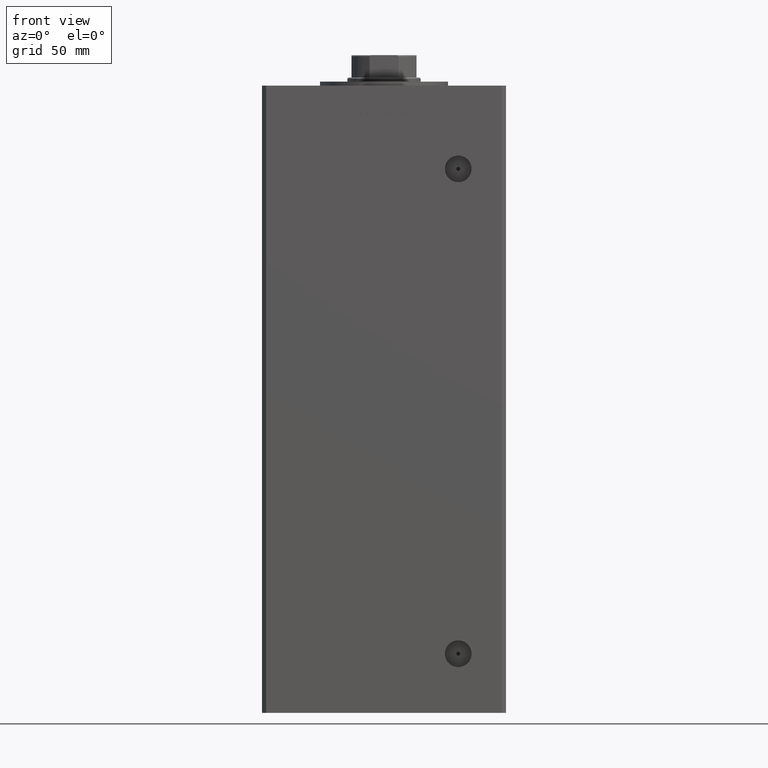
[diagram: clean part render]
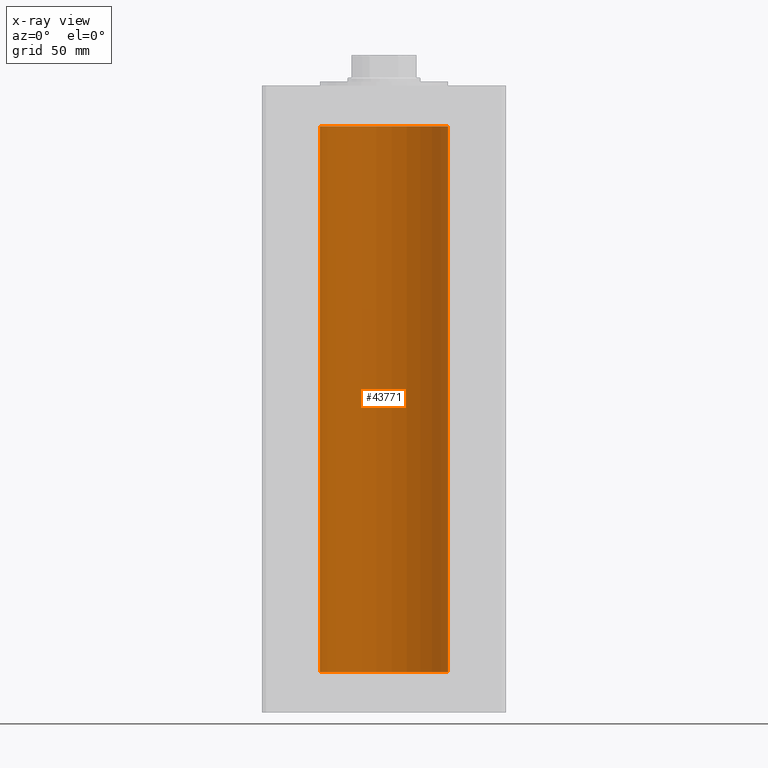
[diagram: x-ray — body ghosted, one internal face saturated and labeled with its STEP entity id]
A machine part, front view, then the same camera in x-ray: the body is ghosted and one INTERNAL B-rep face — a face not visible from any outside direction — is saturated and labeled: STEP entity #43771.
In plain terms, the highlighted cylindrical surface (partial cylindrical patch) has radius 31.5 mm, axis along (-0, -0, -1).
Its self-contained STEP definition (entity closure, byte-faithful):
#891 = VECTOR ( 'NONE', #38145, 1000.000000000000000 ) ;
#3439 = DIRECTION ( 'NONE',  ( 1.000000000000000000, 0.000000000000000000, 0.000000000000000000 ) ) ;
#4929 = DIRECTION ( 'NONE',  ( -1.000000000000000000, 0.000000000000000000, 0.000000000000000000 ) ) ;
#6442 = DIRECTION ( 'NONE',  ( 1.000000000000000000, 0.000000000000000000, 0.000000000000000000 ) ) ;
#10364 = ORIENTED_EDGE ( 'NONE', *, *, #46721, .T. ) ;
#11257 = VERTEX_POINT ( 'NONE', #43966 ) ;
#11458 = CARTESIAN_POINT ( 'NONE',  ( 31.50000000000000000, 3.857637417314162689E-15, 0.000000000000000000 ) ) ;
#12105 = CIRCLE ( 'NONE', #41566, 31.50000000000000000 ) ;
#12851 = VERTEX_POINT ( 'NONE', #17449 ) ;
#13350 = DIRECTION ( 'NONE',  ( -0.000000000000000000, -0.000000000000000000, -1.000000000000000000 ) ) ;
#13590 = CARTESIAN_POINT ( 'NONE',  ( 0.000000000000000000, 0.000000000000000000, 0.000000000000000000 ) ) ;
#14363 = EDGE_CURVE ( 'NONE', #16198, #11257, #12105, .T. ) ;
#15256 = CARTESIAN_POINT ( 'NONE',  ( -31.50000000000000000, 0.000000000000000000, 268.5000000000000000 ) ) ;
#16198 = VERTEX_POINT ( 'NONE', #11458 ) ;
#17449 = CARTESIAN_POINT ( 'NONE',  ( 31.50000000000000000, 3.857637417314162689E-15, 268.5000000000000000 ) ) ;
#20500 = CARTESIAN_POINT ( 'NONE',  ( 0.000000000000000000, 0.000000000000000000, 268.5000000000000000 ) ) ;
#22616 = CIRCLE ( 'NONE', #38595, 31.50000000000000000 ) ;
#23203 = CARTESIAN_POINT ( 'NONE',  ( 0.000000000000000000, 0.000000000000000000, 268.5000000000000000 ) ) ;
#27141 = AXIS2_PLACEMENT_3D ( 'NONE', #20500, #13350, #4929 ) ;
#28910 = EDGE_CURVE ( 'NONE', #37352, #11257, #41615, .T. ) ;
#34715 = LINE ( 'NONE', #37890, #891 ) ;
#35958 = ORIENTED_EDGE ( 'NONE', *, *, #28910, .T. ) ;
#37352 = VERTEX_POINT ( 'NONE', #15256 ) ;
#37531 = EDGE_CURVE ( 'NONE', #12851, #16198, #34715, .T. ) ;
#37576 = DIRECTION ( 'NONE',  ( -0.000000000000000000, 0.000000000000000000, 1.000000000000000000 ) ) ;
#37821 = EDGE_LOOP ( 'NONE', ( #47078, #10364, #35958, #41163 ) ) ;
#37890 = CARTESIAN_POINT ( 'NONE',  ( 31.50000000000000000, 3.857637417314162689E-15, 268.5000000000000000 ) ) ;
#38145 = DIRECTION ( 'NONE',  ( -0.000000000000000000, -0.000000000000000000, -1.000000000000000000 ) ) ;
#38595 = AXIS2_PLACEMENT_3D ( 'NONE', #23203, #39261, #3439 ) ;
#39261 = DIRECTION ( 'NONE',  ( -0.000000000000000000, 0.000000000000000000, 1.000000000000000000 ) ) ;
#40773 = CYLINDRICAL_SURFACE ( 'NONE', #27141, 31.50000000000000000 ) ;
#41097 = CARTESIAN_POINT ( 'NONE',  ( -31.50000000000000000, 0.000000000000000000, 268.5000000000000000 ) ) ;
#41163 = ORIENTED_EDGE ( 'NONE', *, *, #14363, .F. ) ;
#41566 = AXIS2_PLACEMENT_3D ( 'NONE', #13590, #37576, #6442 ) ;
#41615 = LINE ( 'NONE', #41097, #47752 ) ;
#43771 = ADVANCED_FACE ( 'NONE', ( #48427 ), #40773, .F. ) ;
#43966 = CARTESIAN_POINT ( 'NONE',  ( -31.50000000000000000, 0.000000000000000000, 0.000000000000000000 ) ) ;
#46085 = DIRECTION ( 'NONE',  ( -0.000000000000000000, -0.000000000000000000, -1.000000000000000000 ) ) ;
#46721 = EDGE_CURVE ( 'NONE', #12851, #37352, #22616, .T. ) ;
#47078 = ORIENTED_EDGE ( 'NONE', *, *, #37531, .F. ) ;
#47752 = VECTOR ( 'NONE', #46085, 1000.000000000000000 ) ;
#48427 = FACE_OUTER_BOUND ( 'NONE', #37821, .T. ) ;